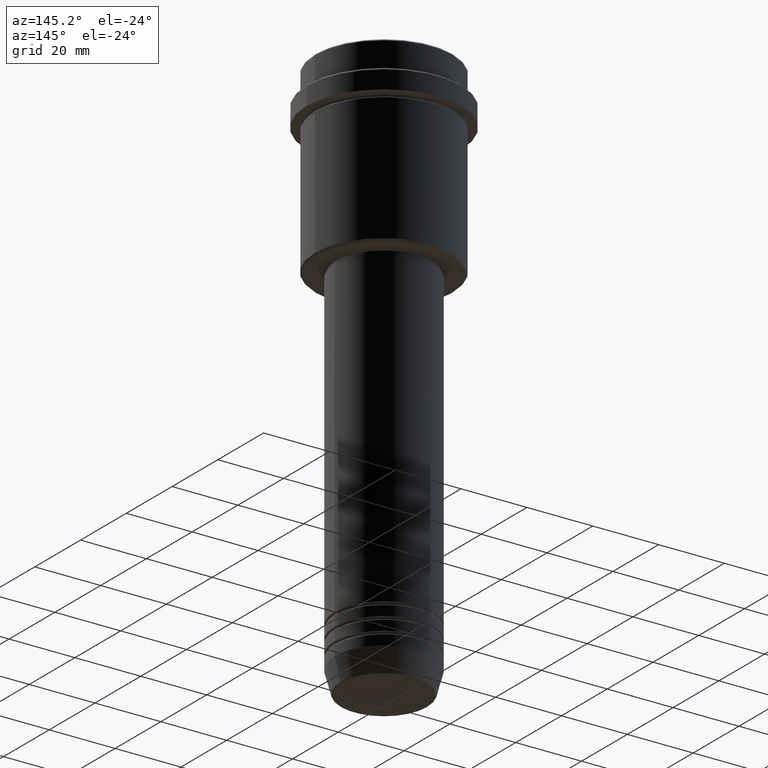
[diagram: clean part render]
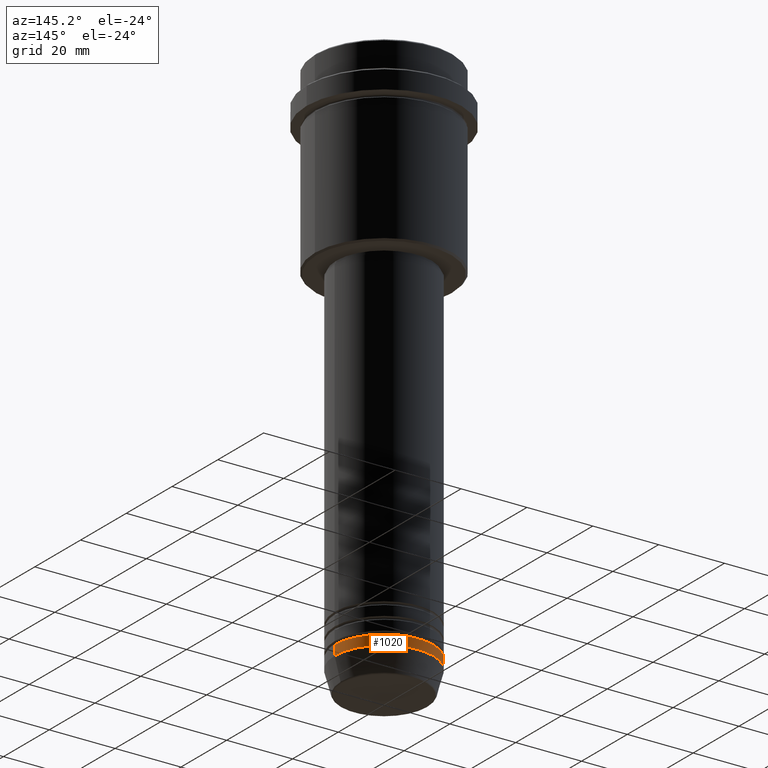
[diagram: same view with one face highlighted and labeled with its STEP entity id]
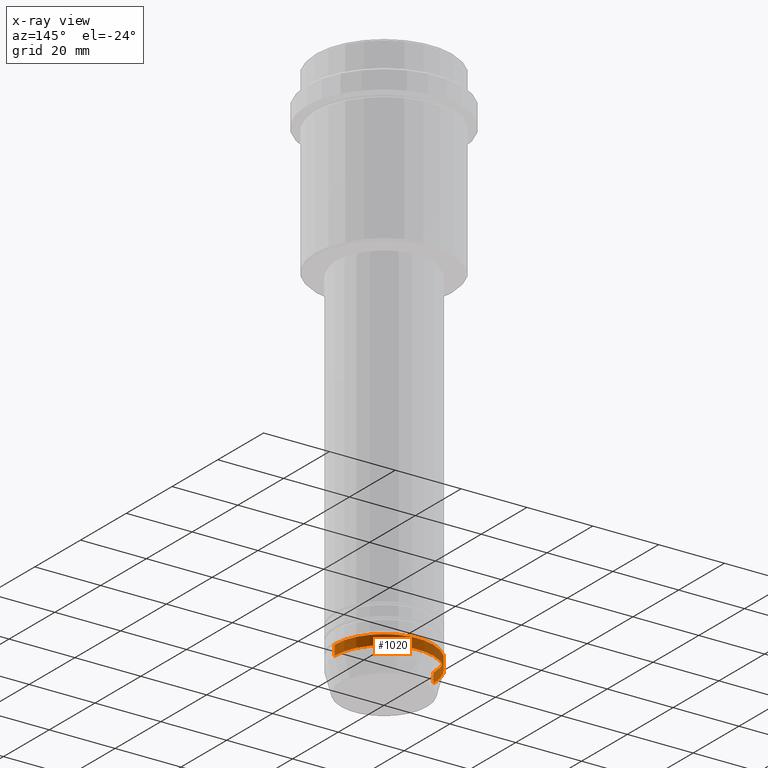
[diagram: x-ray of the same camera — body ghosted, the highlighted face saturated]
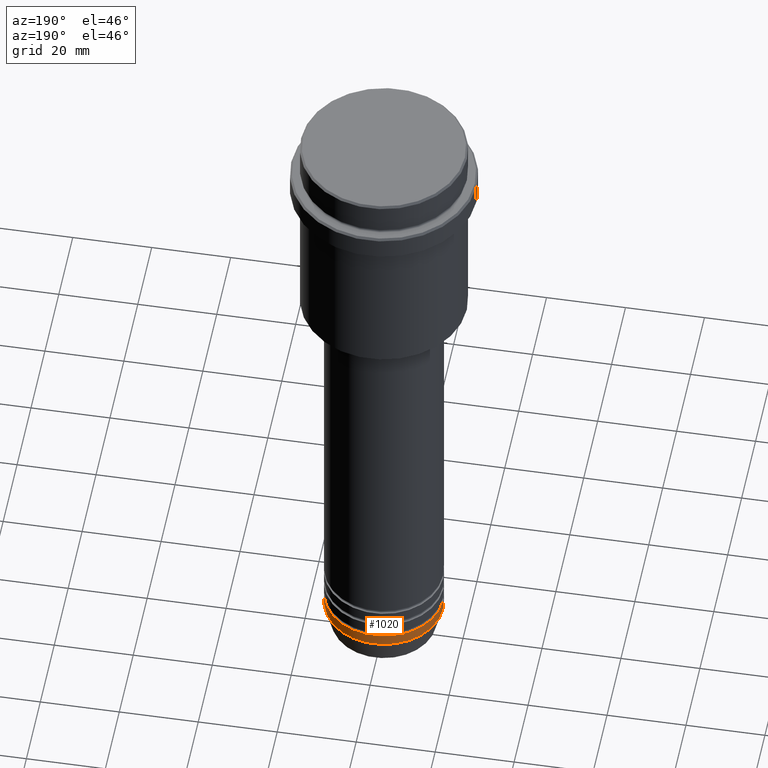
[diagram: same view with one face highlighted and labeled with its STEP entity id]
A machine part, auxiliary view. The second image highlights one B-rep face of the part: STEP entity #1020.
The next image is the same camera in x-ray: the body ghosted, the highlighted face saturated — about 0% of this face is hidden behind the body in this view.
A second angle (auxiliary view) of the same face is appended — the face is thin or edge-on in the first view.
In plain terms, the highlighted cylindrical surface (partial cylindrical patch) has radius 15 mm, axis along (-0, -0, 1).
Its self-contained STEP definition (entity closure, byte-faithful):
#6 = ORIENTED_EDGE ( 'NONE', *, *, #349, .F. ) ;
#22 = DIRECTION ( 'NONE',  ( -0.000000000000000000, -0.000000000000000000, 1.000000000000000000 ) ) ;
#114 = VERTEX_POINT ( 'NONE', #1296 ) ;
#140 = LINE ( 'NONE', #436, #157 ) ;
#157 = VECTOR ( 'NONE', #541, 1000.000000000000000 ) ;
#175 = ORIENTED_EDGE ( 'NONE', *, *, #794, .F. ) ;
#298 = DIRECTION ( 'NONE',  ( 1.000000000000000000, 0.000000000000000000, 0.000000000000000000 ) ) ;
#314 = CIRCLE ( 'NONE', #634, 15.00000000000000000 ) ;
#349 = EDGE_CURVE ( 'NONE', #114, #1095, #1387, .T. ) ;
#358 = VECTOR ( 'NONE', #1178, 1000.000000000000000 ) ;
#376 = AXIS2_PLACEMENT_3D ( 'NONE', #1414, #22, #1188 ) ;
#395 = AXIS2_PLACEMENT_3D ( 'NONE', #692, #1125, #1131 ) ;
#397 = DIRECTION ( 'NONE',  ( -0.000000000000000000, -0.000000000000000000, 1.000000000000000000 ) ) ;
#436 = CARTESIAN_POINT ( 'NONE',  ( -15.00000000000000000, 1.836970198721029589E-15, 0.000000000000000000 ) ) ;
#454 = VERTEX_POINT ( 'NONE', #1009 ) ;
#541 = DIRECTION ( 'NONE',  ( -0.000000000000000000, -0.000000000000000000, 1.000000000000000000 ) ) ;
#610 = FACE_OUTER_BOUND ( 'NONE', #801, .T. ) ;
#634 = AXIS2_PLACEMENT_3D ( 'NONE', #952, #397, #298 ) ;
#692 = CARTESIAN_POINT ( 'NONE',  ( 0.000000000000000000, 0.000000000000000000, 0.000000000000000000 ) ) ;
#740 = CARTESIAN_POINT ( 'NONE',  ( 15.00000000000000000, 0.000000000000000000, 0.000000000000000000 ) ) ;
#746 = EDGE_CURVE ( 'NONE', #454, #1070, #314, .T. ) ;
#794 = EDGE_CURVE ( 'NONE', #454, #114, #1186, .T. ) ;
#801 = EDGE_LOOP ( 'NONE', ( #1311, #1368, #6, #175 ) ) ;
#876 = EDGE_CURVE ( 'NONE', #1070, #1095, #140, .T. ) ;
#922 = CARTESIAN_POINT ( 'NONE',  ( -15.00000000000000000, 1.836970198721029589E-15, -162.9999999999999716 ) ) ;
#952 = CARTESIAN_POINT ( 'NONE',  ( 0.000000000000000000, 0.000000000000000000, -162.9999999999999716 ) ) ;
#1009 = CARTESIAN_POINT ( 'NONE',  ( 15.00000000000000000, 0.000000000000000000, -162.9999999999999716 ) ) ;
#1020 = ADVANCED_FACE ( 'NONE', ( #610 ), #1142, .T. ) ;
#1070 = VERTEX_POINT ( 'NONE', #922 ) ;
#1095 = VERTEX_POINT ( 'NONE', #1146 ) ;
#1125 = DIRECTION ( 'NONE',  ( -0.000000000000000000, -0.000000000000000000, 1.000000000000000000 ) ) ;
#1131 = DIRECTION ( 'NONE',  ( 1.000000000000000000, 0.000000000000000000, 0.000000000000000000 ) ) ;
#1142 = CYLINDRICAL_SURFACE ( 'NONE', #395, 15.00000000000000000 ) ;
#1146 = CARTESIAN_POINT ( 'NONE',  ( -15.00000000000000000, 1.836970198721029589E-15, -159.9999999999999716 ) ) ;
#1178 = DIRECTION ( 'NONE',  ( -0.000000000000000000, -0.000000000000000000, 1.000000000000000000 ) ) ;
#1186 = LINE ( 'NONE', #740, #358 ) ;
#1188 = DIRECTION ( 'NONE',  ( 1.000000000000000000, 0.000000000000000000, 0.000000000000000000 ) ) ;
#1296 = CARTESIAN_POINT ( 'NONE',  ( 15.00000000000000000, 0.000000000000000000, -159.9999999999999716 ) ) ;
#1311 = ORIENTED_EDGE ( 'NONE', *, *, #746, .T. ) ;
#1368 = ORIENTED_EDGE ( 'NONE', *, *, #876, .T. ) ;
#1387 = CIRCLE ( 'NONE', #376, 15.00000000000000000 ) ;
#1414 = CARTESIAN_POINT ( 'NONE',  ( 0.000000000000000000, 0.000000000000000000, -159.9999999999999716 ) ) ;